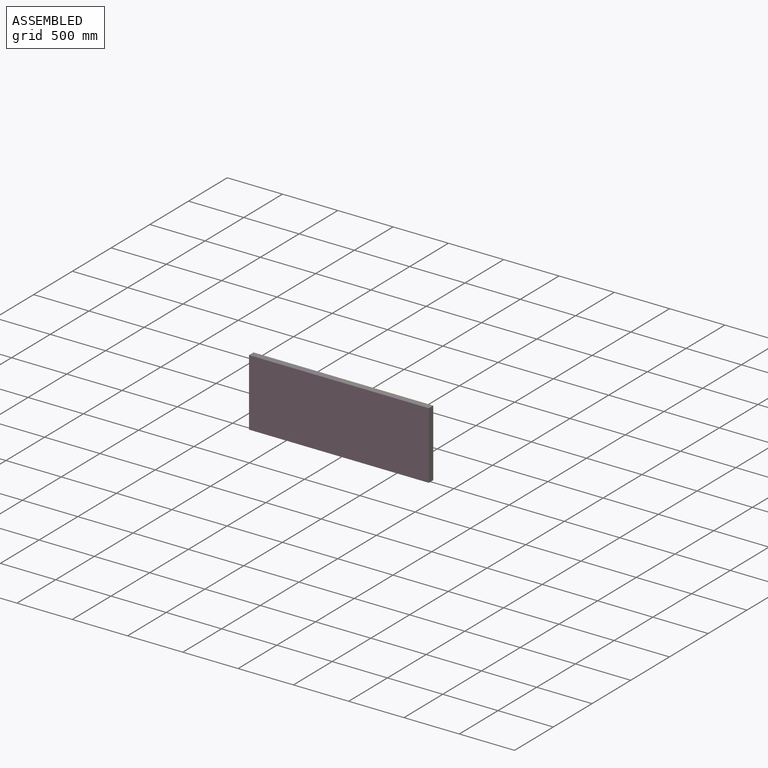
[diagram: assembled view]
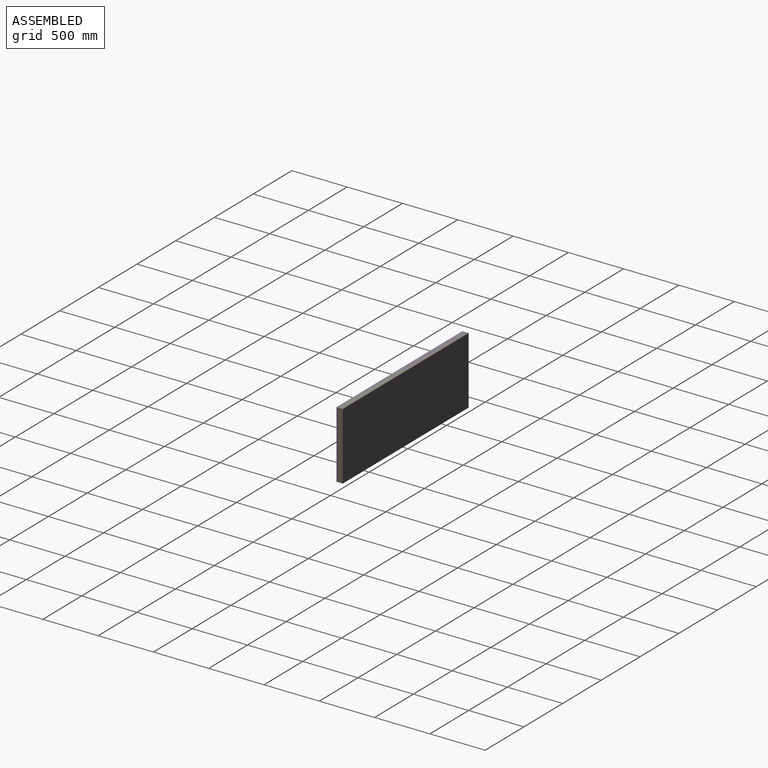
[diagram: assembled view, second angle]
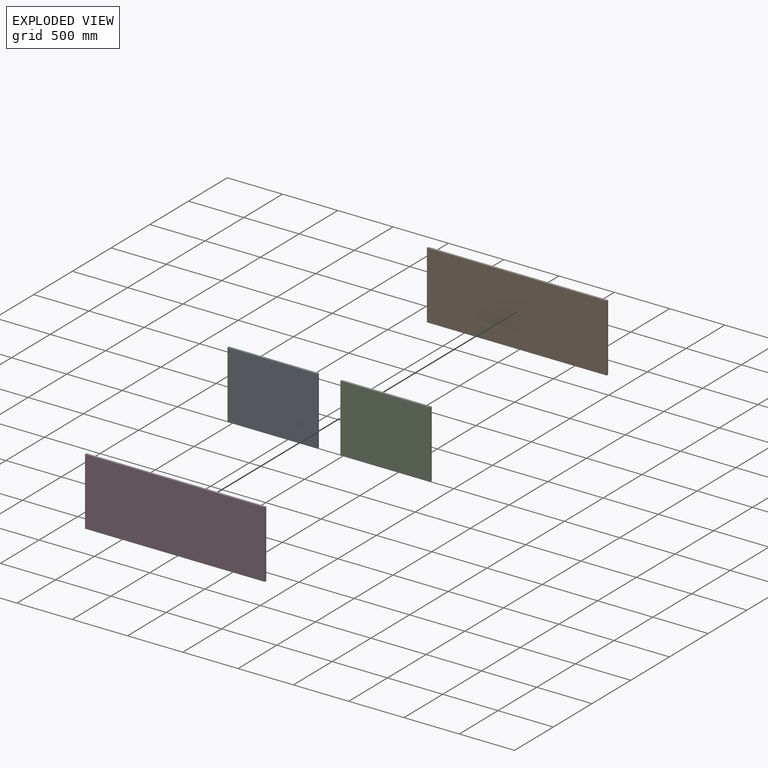
[diagram: exploded view]
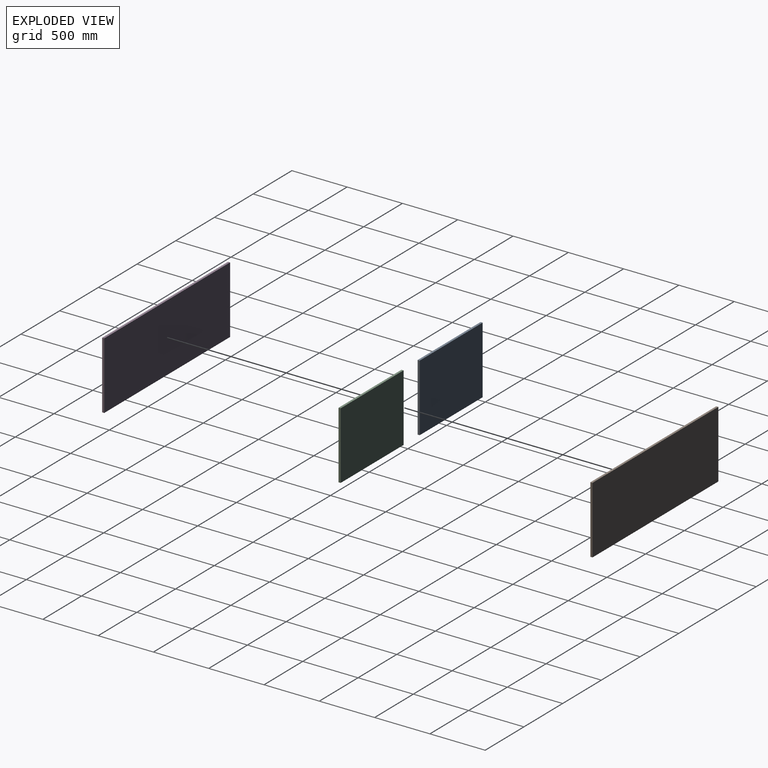
[diagram: exploded view, second angle]
ASSEMBLY  parts=4 mates=9
PART A: 6 faces, bbox 812.8x19.1x609.6 mm
  f0: plane 812.8x19.05mm, normal (0,0,1), area 15483.8mm2, adj f1,f3,f4,f5
  f1: plane 609.6x19.05mm, normal (-1,0,0), area 11612.9mm2, adj f0,f2,f4,f5
  f2: plane 812.8x19.05mm, normal (0,0,-1), area 15483.8mm2, adj f1,f3,f4,f5
  f3: plane 609.6x19.05mm, normal (1,0,0), area 11612.9mm2, adj f0,f2,f4,f5
  f4: plane 812.8x609.6mm, normal (0,-1,0), area 495482.9mm2, adj f0,f1,f2,f3
  f5: plane 812.8x609.6mm, normal (0,1,0), area 495482.9mm2, adj f0,f1,f2,f3
PART B: 6 faces, bbox 1625.6x19.1x609.6 mm
  f0: plane 609.6x19.05mm, normal (-1,0,0), area 11612.9mm2, adj f1,f3,f4,f5
  f1: plane 1625.6x19.05mm, normal (0,0,-1), area 30967.7mm2, adj f0,f2,f4,f5
  f2: plane 609.6x19.05mm, normal (1,0,0), area 11612.9mm2, adj f1,f3,f4,f5
  f3: plane 1625.6x19.05mm, normal (0,0,1), area 30967.7mm2, adj f0,f2,f4,f5
  f4: plane 1625.6x609.6mm, normal (0,-1,0), area 990965.8mm2, adj f0,f1,f2,f3
  f5: plane 1625.6x609.6mm, normal (0,1,0), area 990965.8mm2, adj f0,f1,f2,f3
PART C: 6 faces, bbox 812.8x19.1x609.6 mm
  f0: plane 609.6x19.05mm, normal (-1,0,0), area 11612.9mm2, adj f1,f3,f4,f5
  f1: plane 812.8x19.05mm, normal (0,0,-1), area 15483.8mm2, adj f0,f2,f4,f5
  f2: plane 609.6x19.05mm, normal (1,0,0), area 11612.9mm2, adj f1,f3,f4,f5
  f3: plane 812.8x19.05mm, normal (0,0,1), area 15483.8mm2, adj f0,f2,f4,f5
  f4: plane 812.8x609.6mm, normal (0,-1,0), area 495482.9mm2, adj f0,f1,f2,f3
  f5: plane 812.8x609.6mm, normal (0,1,0), area 495482.9mm2, adj f0,f1,f2,f3
PART D: 6 faces, bbox 1625.6x19.1x609.6 mm
  f0: plane 1625.6x19.05mm, normal (0,0,1), area 30967.7mm2, adj f1,f3,f4,f5
  f1: plane 609.6x19.05mm, normal (-1,0,0), area 11612.9mm2, adj f0,f2,f4,f5
  f2: plane 1625.6x19.05mm, normal (0,0,-1), area 30967.7mm2, adj f1,f3,f4,f5
  f3: plane 609.6x19.05mm, normal (1,0,0), area 11612.9mm2, adj f0,f2,f4,f5
  f4: plane 1625.6x609.6mm, normal (0,-1,0), area 990965.8mm2, adj f0,f1,f2,f3
  f5: plane 1625.6x609.6mm, normal (0,1,0), area 990965.8mm2, adj f0,f1,f2,f3
PLACE A t=(-2709.3,-31.45,477.93)mm
PLACE B t=(-1083.7,-12.4,477.93)mm
PLACE C t=(-1896.5,-31.45,1087.53)mm
PLACE D t=(-1083.7,-50.5,1087.53)mm
MATE planar D.f5 <-> C.f4  axis (0,1,0) through (-1490.1,-50.5,1087.53)mm
MATE planar C.f3 <-> B.f3  axis (0,0,1) through (-1083.7,-40.98,1087.53)mm
MATE planar C.f4 <-> A.f4  axis (0,-1,0) through (-1490.1,-50.5,1087.53)mm
MATE planar D.f0 <-> A.f0  axis (0,0,1) through (-2302.9,-69.55,1087.53)mm
MATE planar A.f1 <-> B.f0  axis (-1,0,0) through (-2302.9,-40.98,782.73)mm
MATE planar A.f5 <-> B.f4  axis (0,1,0) through (-1896.5,-31.45,782.73)mm
MATE planar A.f0 <-> B.f3  axis (0,0,1) through (-1896.5,-40.98,1087.53)mm
MATE planar C.f2 <-> B.f2  axis (1,0,0) through (-677.3,-40.98,782.73)mm
MATE planar D.f1 <-> A.f1  axis (-1,0,0) through (-2302.9,-50.5,1087.53)mm
